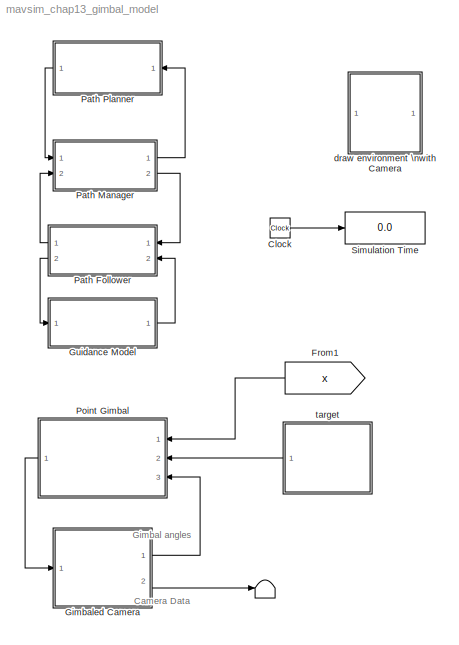
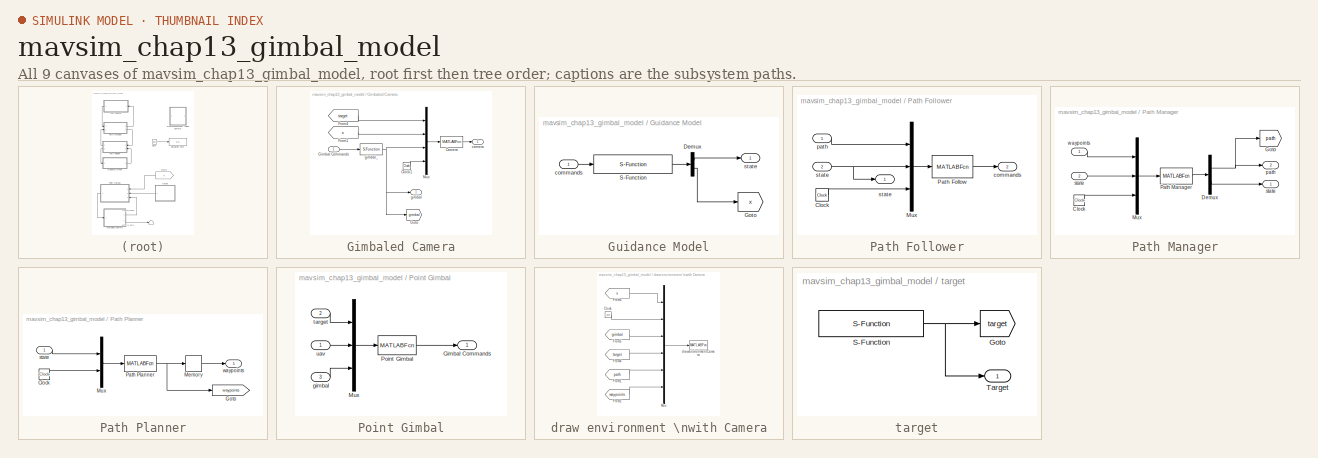
[diagram: thumbnail index - all 9 canvases of the model, root first then tree order]
MODEL mavsim_chap13_gimbal_model
KIND model
BLOCK [Terminator]  
  SID = 231
BLOCK [Clock] Clock
  SID = 12
BLOCK [From] From1
  CloseFcn = tagdialog Close
  GotoTag = x
  SID = 232
  TagVisibility = global
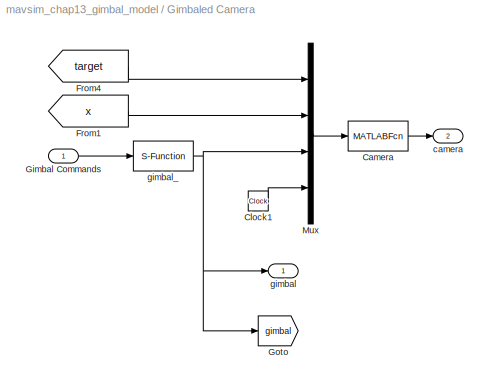
BLOCK [SubSystem] Gimbaled Camera
  Ports = [1, 2]
  RequestExecContextInheritance = off
  SID = 233
  Variant = off
BLOCK [MATLABFcn] Gimbaled Camera/Camera
  MATLABFcn = camera(u,P)
  OutputDimensions = 3
  Ports = [1, 1]
  SID = 235
  SampleTime = 1/P.cam_fps
BLOCK [Clock] Gimbaled Camera/Clock1
  SID = 236
BLOCK [From] Gimbaled Camera/From1
  CloseFcn = tagdialog Close
  GotoTag = x
  SID = 237
  TagVisibility = global
BLOCK [From] Gimbaled Camera/From4
  CloseFcn = tagdialog Close
  GotoTag = target
  SID = 238
  TagVisibility = global
BLOCK [Inport] Gimbaled Camera/Gimbal Commands
  IconDisplay = Port number
  SID = 234
BLOCK [Goto] Gimbaled Camera/Goto
  GotoTag = gimbal
  SID = 239
  TagVisibility = global
BLOCK [Mux] Gimbaled Camera/Mux
  DisplayOption = bar
  Ports = [4, 1]
  SID = 240
BLOCK [Outport] Gimbaled Camera/camera
  IconDisplay = Port number
  Port = 2
  SID = 243
BLOCK [Outport] Gimbaled Camera/gimbal
  IconDisplay = Port number
  SID = 242
BLOCK [S-Function] Gimbaled Camera/gimbal_
  EnableBusSupport = off
  FunctionName = gimbal
  Parameters = P
  Ports = [1, 1]
  SFcnIsStateOwnerBlock = off
  SFunctionDeploymentMode = off
  SID = 241
BLOCK [SubSystem] Guidance Model
  Ports = [1, 1]
  RequestExecContextInheritance = off
  SID = 135
  Variant = off
BLOCK [Demux] Guidance Model/Demux
  DisplayOption = bar
  Outputs = [16;12]
  Ports = [1, 2]
  SID = 182
BLOCK [Goto] Guidance Model/Goto
  GotoTag = x
  SID = 134
  TagVisibility = global
BLOCK [S-Function] Guidance Model/S-Function
  EnableBusSupport = off
  FunctionName = guidance_model
  Parameters = P
  Ports = [1, 1]
  SFcnIsStateOwnerBlock = off
  SFunctionDeploymentMode = off
  SID = 89
BLOCK [Inport] Guidance Model/commands
  IconDisplay = Port number
  SID = 136
BLOCK [Outport] Guidance Model/state
  IconDisplay = Port number
  SID = 137
BLOCK [SubSystem] Path Follower
  Ports = [2, 2]
  RequestExecContextInheritance = off
  SID = 162
  Variant = off
BLOCK [Clock] Path Follower/Clock
  SID = 165
BLOCK [Mux] Path Follower/Mux
  DisplayOption = bar
  Inputs = 3
  Ports = [3, 1]
  SID = 166
BLOCK [MATLABFcn] Path Follower/Path Follow
  MATLABFcn = path_follow(u,P)
  OutputDimensions = 4
  Ports = [1, 1]
  SID = 167
  SampleTime = P.Ts
BLOCK [Outport] Path Follower/commands
  IconDisplay = Port number
  Port = 2
  SID = 168
BLOCK [Inport] Path Follower/path
  IconDisplay = Port number
  SID = 163
BLOCK [Inport] Path Follower/state
  IconDisplay = Port number
  Port = 2
  SID = 164
BLOCK [Outport] Path Follower/state 
  IconDisplay = Port number
  SID = 183
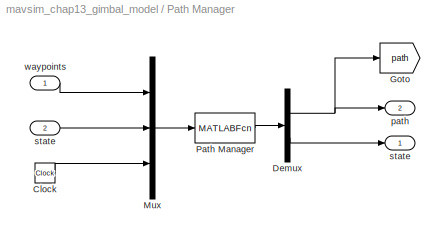
BLOCK [SubSystem] Path Manager
  Ports = [2, 2]
  RequestExecContextInheritance = off
  SID = 213
  Variant = off
BLOCK [Clock] Path Manager/Clock
  SID = 216
BLOCK [Demux] Path Manager/Demux
  DisplayOption = bar
  Outputs = [13;17]
  Ports = [1, 2]
  SID = 217
BLOCK [Goto] Path Manager/Goto
  GotoTag = path
  SID = 218
  TagVisibility = global
BLOCK [Mux] Path Manager/Mux
  DisplayOption = bar
  Inputs = 3
  Ports = [3, 1]
  SID = 219
BLOCK [MATLABFcn] Path Manager/Path Manager
  MATLABFcn = path_manager(u,P)
  OutputDimensions = 30
  Ports = [1, 1]
  SID = 220
  SampleTime = P.Ts
BLOCK [Outport] Path Manager/path
  IconDisplay = Port number
  Port = 2
  SID = 222
BLOCK [Inport] Path Manager/state
  IconDisplay = Port number
  Port = 2
  SID = 215
BLOCK [Outport] Path Manager/state 
  IconDisplay = Port number
  SID = 221
BLOCK [Inport] Path Manager/waypoints
  IconDisplay = Port number
  SID = 214
BLOCK [SubSystem] Path Planner
  Ports = [1, 1]
  RequestExecContextInheritance = off
  SID = 223
  Variant = off
BLOCK [Clock] Path Planner/Clock
  SID = 225
BLOCK [Goto] Path Planner/Goto
  GotoTag = waypoints
  SID = 226
  TagVisibility = global
BLOCK [Memory] Path Planner/Memory
  SID = 227
BLOCK [Mux] Path Planner/Mux
  DisplayOption = bar
  Inputs = 2
  Ports = [2, 1]
  SID = 228
BLOCK [MATLABFcn] Path Planner/Path Planner
  MATLABFcn = path_planner(u,P,P.map)
  OutputDimensions = 1+5*P.size_waypoint_array
  Ports = [1, 1]
  SID = 229
  SampleTime = 100*P.Ts
BLOCK [Inport] Path Planner/state
  IconDisplay = Port number
  SID = 224
BLOCK [Outport] Path Planner/waypoints
  IconDisplay = Port number
  SID = 230
BLOCK [SubSystem] Point Gimbal
  Ports = [3, 1]
  RequestExecContextInheritance = off
  SID = 250
  Variant = off
BLOCK [Outport] Point Gimbal/Gimbal Commands
  IconDisplay = Port number
  SID = 256
BLOCK [Mux] Point Gimbal/Mux
  DisplayOption = bar
  Inputs = 3
  Ports = [3, 1]
  SID = 254
BLOCK [MATLABFcn] Point Gimbal/Point Gimbal
  MATLABFcn = point_gimbal(u,P)
  OutputDimensions = 2
  Ports = [1, 1]
  SID = 255
  SampleTime = P.Ts
BLOCK [Inport] Point Gimbal/gimbal
  IconDisplay = Port number
  Port = 3
  SID = 253
BLOCK [Inport] Point Gimbal/target
  IconDisplay = Port number
  Port = 2
  SID = 252
BLOCK [Inport] Point Gimbal/uav
  IconDisplay = Port number
  SID = 251
BLOCK [Display] Simulation Time
  Decimation = 1
  Ports = [1]
  SID = 31
BLOCK [SubSystem] draw environment \nwith Camera
  Ports = []
  RequestExecContextInheritance = off
  SID = 261
  Variant = off
BLOCK [Clock] draw environment \nwith Camera/Clock
  SID = 262
BLOCK [From] draw environment \nwith Camera/From1
  CloseFcn = tagdialog Close
  GotoTag = path
  SID = 263
  TagVisibility = global
BLOCK [From] draw environment \nwith Camera/From2
  CloseFcn = tagdialog Close
  GotoTag = waypoints
  SID = 264
  TagVisibility = global
BLOCK [From] draw environment \nwith Camera/From3
  CloseFcn = tagdialog Close
  GotoTag = x
  SID = 265
  TagVisibility = global
BLOCK [From] draw environment \nwith Camera/From4
  CloseFcn = tagdialog Close
  GotoTag = target
  SID = 266
  TagVisibility = global
BLOCK [From] draw environment \nwith Camera/From5
  CloseFcn = tagdialog Close
  GotoTag = gimbal
  SID = 267
  TagVisibility = global
BLOCK [Mux] draw environment \nwith Camera/Mux
  DisplayOption = bar
  Inputs = 6
  Ports = [6, 1]
  SID = 268
BLOCK [MATLABFcn] draw environment \nwith Camera/drawEnvironmentCamera
  MATLABFcn = drawEnvironmentCamera(u,V,F,colors,map,R_min,cam_fov)
  OutputDimensions = 0
  Ports = [1]
  SID = 269
  SampleTime = 0.1
BLOCK [SubSystem] target
  Ports = [0, 1]
  RequestExecContextInheritance = off
  SID = 257
  Variant = off
BLOCK [Goto] target/Goto
  GotoTag = target
  SID = 258
  TagVisibility = global
BLOCK [S-Function] target/S-Function
  EnableBusSupport = off
  FunctionName = target_motion
  Parameters = P,P.map
  Ports = [0, 1]
  SFcnIsStateOwnerBlock = off
  SFunctionDeploymentMode = off
  SID = 259
BLOCK [Outport] target/Target
  IconDisplay = Port number
  SID = 260
ANNOTATION (root): Camera Data
ANNOTATION (root): Gimbal angles
LINE Clock:1 -> Simulation Time:1
LINE From1:1 -> Point Gimbal:1
LINE Gimbaled Camera/Camera:1 -> Gimbaled Camera/camera:1
LINE Gimbaled Camera/Clock1:1 -> Gimbaled Camera/Mux:4
LINE Gimbaled Camera/From1:1 -> Gimbaled Camera/Mux:2
LINE Gimbaled Camera/From4:1 -> Gimbaled Camera/Mux:1
LINE Gimbaled Camera/Gimbal Commands:1 -> Gimbaled Camera/gimbal_:1
LINE Gimbaled Camera/Mux:1 -> Gimbaled Camera/Camera:1
NET Gimbaled Camera/gimbal_:1 -> Gimbaled Camera/Goto:1, Gimbaled Camera/Mux:3, Gimbaled Camera/gimbal:1
LINE Gimbaled Camera:1 -> Point Gimbal:3
LINE Gimbaled Camera:2 ->  :1
LINE Guidance Model/Demux:1 -> Guidance Model/state:1
LINE Guidance Model/Demux:2 -> Guidance Model/Goto:1
LINE Guidance Model/S-Function:1 -> Guidance Model/Demux:1
LINE Guidance Model/commands:1 -> Guidance Model/S-Function:1
LINE Guidance Model:1 -> Path Follower:2
LINE Path Follower/Clock:1 -> Path Follower/Mux:3
LINE Path Follower/Mux:1 -> Path Follower/Path Follow:1
LINE Path Follower/Path Follow:1 -> Path Follower/commands:1
LINE Path Follower/path:1 -> Path Follower/Mux:1
NET Path Follower/state:1 -> Path Follower/Mux:2, Path Follower/state :1
LINE Path Follower:1 -> Path Manager:2
LINE Path Follower:2 -> Guidance Model:1
LINE Path Manager/Clock:1 -> Path Manager/Mux:3
NET Path Manager/Demux:1 -> Path Manager/Goto:1, Path Manager/path:1
LINE Path Manager/Demux:2 -> Path Manager/state :1
LINE Path Manager/Mux:1 -> Path Manager/Path Manager:1
LINE Path Manager/Path Manager:1 -> Path Manager/Demux:1
LINE Path Manager/state:1 -> Path Manager/Mux:2
LINE Path Manager/waypoints:1 -> Path Manager/Mux:1
LINE Path Manager:1 -> Path Planner:1
LINE Path Manager:2 -> Path Follower:1
LINE Path Planner/Clock:1 -> Path Planner/Mux:2
LINE Path Planner/Memory:1 -> Path Planner/waypoints:1
LINE Path Planner/Mux:1 -> Path Planner/Path Planner:1
NET Path Planner/Path Planner:1 -> Path Planner/Goto:1, Path Planner/Memory:1
LINE Path Planner/state:1 -> Path Planner/Mux:1
LINE Path Planner:1 -> Path Manager:1
LINE Point Gimbal/Mux:1 -> Point Gimbal/Point Gimbal:1
LINE Point Gimbal/Point Gimbal:1 -> Point Gimbal/Gimbal Commands:1
LINE Point Gimbal/gimbal:1 -> Point Gimbal/Mux:3
LINE Point Gimbal/target:1 -> Point Gimbal/Mux:1
LINE Point Gimbal/uav:1 -> Point Gimbal/Mux:2
LINE Point Gimbal:1 -> Gimbaled Camera:1
LINE draw environment \nwith Camera/Clock:1 -> draw environment \nwith Camera/Mux:2
LINE draw environment \nwith Camera/From1:1 -> draw environment \nwith Camera/Mux:5
LINE draw environment \nwith Camera/From2:1 -> draw environment \nwith Camera/Mux:6
LINE draw environment \nwith Camera/From3:1 -> draw environment \nwith Camera/Mux:1
LINE draw environment \nwith Camera/From4:1 -> draw environment \nwith Camera/Mux:4
LINE draw environment \nwith Camera/From5:1 -> draw environment \nwith Camera/Mux:3
LINE draw environment \nwith Camera/Mux:1 -> draw environment \nwith Camera/drawEnvironmentCamera:1
NET target/S-Function:1 -> target/Goto:1, target/Target:1
LINE target:1 -> Point Gimbal:2
note: NET lines group one-source signal fan-out (src -> all destinations, sorted); 1:1 wires keep LINE
